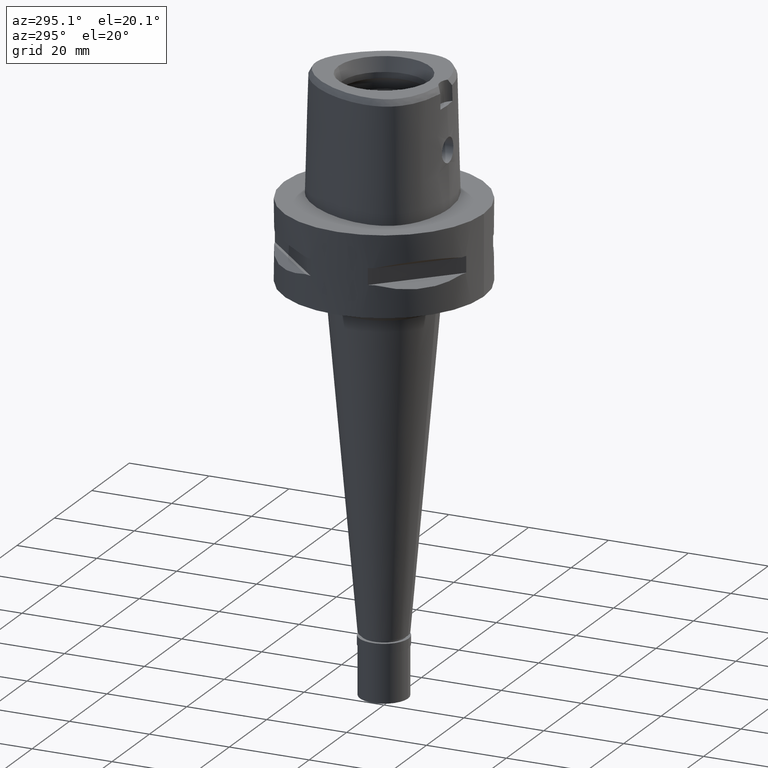
[diagram: clean part render]
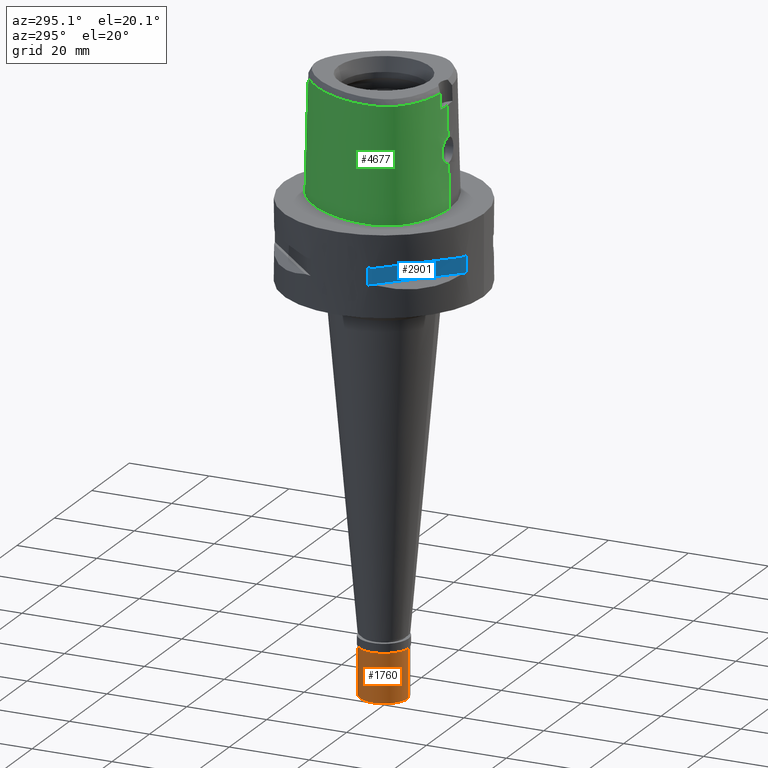
[diagram: same view with three faces highlighted in distinct colors, each labeled with its STEP entity id]
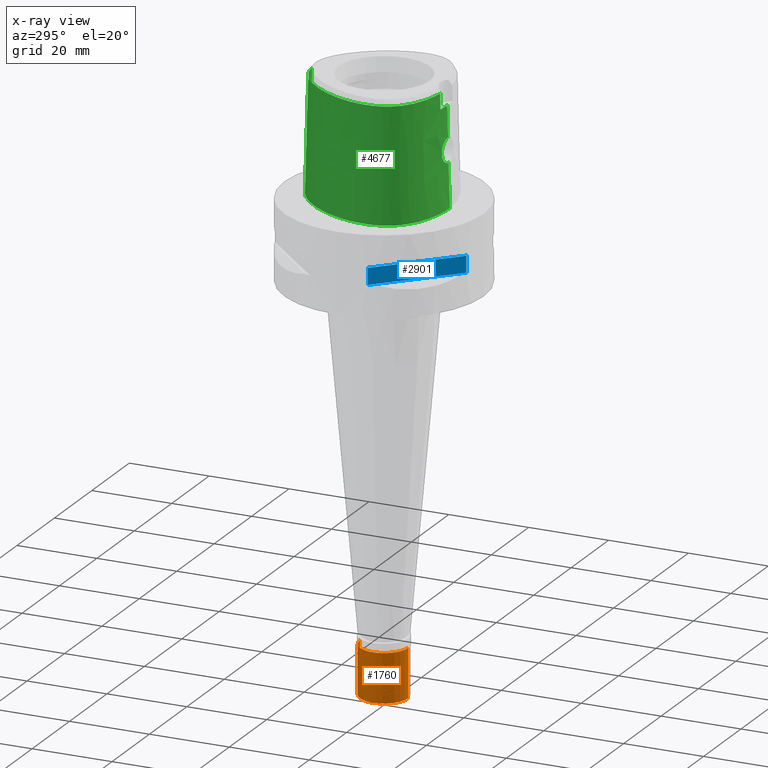
[diagram: x-ray of the same camera — body ghosted, the three highlighted faces saturated]
A machine part, auxiliary view with three faces highlighted in distinct colors.
The next image is the same camera in x-ray (body ghosted, the three faces saturated) — at least one of them is partly hidden behind the body in this view.
Their STEP definitions:

[orange] entity #1760 — the highlighted cylindrical surface (edge-blend (fillet) strip) has radius 6 mm, axis along (0, 0, 1).
#2 = CARTESIAN_POINT ( 'NONE',  ( 0.0000000000000000000, 0.0000000000000000000, -15.22500000000000142 ) ) ;
#78 = DIRECTION ( 'NONE',  ( 0.0000000000000000000, 1.000000000000000000, 0.0000000000000000000 ) ) ;
#173 = DIRECTION ( 'NONE',  ( 0.0000000000000000000, 0.0000000000000000000, -1.000000000000000000 ) ) ;
#236 = DIRECTION ( 'NONE',  ( 0.0000000000000000000, 0.0000000000000000000, 1.000000000000000000 ) ) ;
#288 = CARTESIAN_POINT ( 'NONE',  ( 0.0000000000000000000, -6.000000000000000000, -2.299999999999999822 ) ) ;
#319 = EDGE_CURVE ( 'NONE', #3281, #2619, #546, .T. ) ;
#451 = FACE_OUTER_BOUND ( 'NONE', #2199, .T. ) ;
#457 = VERTEX_POINT ( 'NONE', #288 ) ;
#536 = EDGE_CURVE ( 'NONE', #457, #3281, #1731, .T. ) ;
#546 = LINE ( 'NONE', #2021, #4209 ) ;
#635 = CARTESIAN_POINT ( 'NONE',  ( 0.0000000000000000000, -6.000000000000000000, -14.50000000000000000 ) ) ;
#962 = CIRCLE ( 'NONE', #2345, 6.000000000000000000 ) ;
#979 = EDGE_CURVE ( 'NONE', #2619, #4116, #962, .T. ) ;
#1013 = DIRECTION ( 'NONE',  ( 0.0000000000000000000, 1.000000000000000000, 0.0000000000000000000 ) ) ;
#1337 = CARTESIAN_POINT ( 'NONE',  ( 0.0000000000000000000, 0.0000000000000000000, -2.299999999999999822 ) ) ;
#1731 = CIRCLE ( 'NONE', #3501, 6.000000000000000000 ) ;
#1760 = ADVANCED_FACE ( 'NONE', ( #451 ), #1926, .T. ) ;
#1926 = CYLINDRICAL_SURFACE ( 'NONE', #3572, 6.000000000000000000 ) ;
#2021 = CARTESIAN_POINT ( 'NONE',  ( 0.0000000000000000000, 6.000000000000000000, -2.299999999999999822 ) ) ;
#2133 = LINE ( 'NONE', #3244, #2890 ) ;
#2154 = CARTESIAN_POINT ( 'NONE',  ( 0.0000000000000000000, 6.000000000000000000, -14.50000000000000000 ) ) ;
#2199 = EDGE_LOOP ( 'NONE', ( #4088, #2787, #4760, #4072 ) ) ;
#2345 = AXIS2_PLACEMENT_3D ( 'NONE', #4666, #236, #1013 ) ;
#2474 = DIRECTION ( 'NONE',  ( 0.0000000000000000000, 0.0000000000000000000, -1.000000000000000000 ) ) ;
#2588 = EDGE_CURVE ( 'NONE', #457, #4116, #2133, .T. ) ;
#2619 = VERTEX_POINT ( 'NONE', #2154 ) ;
#2787 = ORIENTED_EDGE ( 'NONE', *, *, #2588, .F. ) ;
#2820 = DIRECTION ( 'NONE',  ( 0.0000000000000000000, 0.0000000000000000000, -1.000000000000000000 ) ) ;
#2890 = VECTOR ( 'NONE', #2474, 1000.000000000000000 ) ;
#3244 = CARTESIAN_POINT ( 'NONE',  ( 0.0000000000000000000, -6.000000000000000000, -2.299999999999999822 ) ) ;
#3281 = VERTEX_POINT ( 'NONE', #3505 ) ;
#3398 = DIRECTION ( 'NONE',  ( 0.0000000000000000000, 0.0000000000000000000, 1.000000000000000000 ) ) ;
#3501 = AXIS2_PLACEMENT_3D ( 'NONE', #1337, #2820, #4285 ) ;
#3505 = CARTESIAN_POINT ( 'NONE',  ( 0.0000000000000000000, 6.000000000000000000, -2.299999999999999822 ) ) ;
#3572 = AXIS2_PLACEMENT_3D ( 'NONE', #2, #3398, #78 ) ;
#4072 = ORIENTED_EDGE ( 'NONE', *, *, #319, .T. ) ;
#4088 = ORIENTED_EDGE ( 'NONE', *, *, #979, .T. ) ;
#4116 = VERTEX_POINT ( 'NONE', #635 ) ;
#4209 = VECTOR ( 'NONE', #173, 1000.000000000000000 ) ;
#4285 = DIRECTION ( 'NONE',  ( 0.0000000000000000000, -1.000000000000000000, 0.0000000000000000000 ) ) ;
#4666 = CARTESIAN_POINT ( 'NONE',  ( 0.0000000000000000000, 0.0000000000000000000, -14.50000000000000000 ) ) ;
#4760 = ORIENTED_EDGE ( 'NONE', *, *, #536, .T. ) ;

[blue] entity #2901 — the highlighted planar face has unit normal (0.7071, 0.7071, 0).
#116 = CARTESIAN_POINT ( 'NONE',  ( -7.159921374235000080, -23.95277699797999915, -12.05000000000000071 ) ) ;
#359 = ORIENTED_EDGE ( 'NONE', *, *, #4111, .T. ) ;
#544 = DIRECTION ( 'NONE',  ( 0.0000000000000000000, 0.0000000000000000000, 1.000000000000000000 ) ) ;
#828 = DIRECTION ( 'NONE',  ( 0.7071067811865475727, 0.7071067811865475727, 0.0000000000000000000 ) ) ;
#862 = CARTESIAN_POINT ( 'NONE',  ( -7.159921374230999724, -23.95277699797999915, -12.05000000000000071 ) ) ;
#890 = LINE ( 'NONE', #916, #1319 ) ;
#916 = CARTESIAN_POINT ( 'NONE',  ( -7.159921374230999724, -23.95277699797999915, -12.05000000000000071 ) ) ;
#1199 = VECTOR ( 'NONE', #3080, 1000.000000000000114 ) ;
#1260 = FACE_OUTER_BOUND ( 'NONE', #4601, .T. ) ;
#1319 = VECTOR ( 'NONE', #544, 1000.000000000000000 ) ;
#1362 = DIRECTION ( 'NONE',  ( 0.0000000000000000000, 0.0000000000000000000, -1.000000000000000000 ) ) ;
#1486 = EDGE_CURVE ( 'NONE', #2384, #4597, #3756, .T. ) ;
#1572 = PLANE ( 'NONE',  #4438 ) ;
#1808 = VECTOR ( 'NONE', #2311, 1000.000000000000114 ) ;
#2010 = CARTESIAN_POINT ( 'NONE',  ( -23.95277699797999915, -7.159921374230999724, -12.05000000000000071 ) ) ;
#2220 = EDGE_CURVE ( 'NONE', #4140, #3346, #4191, .T. ) ;
#2311 = DIRECTION ( 'NONE',  ( -0.7071067811865474617, 0.7071067811865474617, 0.0000000000000000000 ) ) ;
#2384 = VERTEX_POINT ( 'NONE', #116 ) ;
#2469 = CARTESIAN_POINT ( 'NONE',  ( -23.95277699797999915, -7.159921374235000080, -7.950000000000000178 ) ) ;
#2901 = ADVANCED_FACE ( 'NONE', ( #1260 ), #1572, .F. ) ;
#3080 = DIRECTION ( 'NONE',  ( -0.7071067811865474617, 0.7071067811865474617, 0.0000000000000000000 ) ) ;
#3214 = ORIENTED_EDGE ( 'NONE', *, *, #3829, .T. ) ;
#3346 = VERTEX_POINT ( 'NONE', #2469 ) ;
#3717 = ORIENTED_EDGE ( 'NONE', *, *, #2220, .T. ) ;
#3744 = CARTESIAN_POINT ( 'NONE',  ( -4.949747468305999654, -26.16295090389999700, -7.950000000000000178 ) ) ;
#3756 = LINE ( 'NONE', #862, #1808 ) ;
#3829 = EDGE_CURVE ( 'NONE', #2384, #4140, #890, .T. ) ;
#3902 = CARTESIAN_POINT ( 'NONE',  ( -23.95277699797999915, -7.159921374230999724, -7.950000000000000178 ) ) ;
#3929 = ORIENTED_EDGE ( 'NONE', *, *, #1486, .F. ) ;
#3944 = CARTESIAN_POINT ( 'NONE',  ( -7.159921374230999724, -23.95277699797999915, -7.950000000000000178 ) ) ;
#4111 = EDGE_CURVE ( 'NONE', #3346, #4597, #4706, .T. ) ;
#4140 = VERTEX_POINT ( 'NONE', #3944 ) ;
#4144 = CARTESIAN_POINT ( 'NONE',  ( -7.159921374230999724, -23.95277699797999915, -7.950000000000000178 ) ) ;
#4184 = DIRECTION ( 'NONE',  ( 0.0000000000000000000, 0.0000000000000000000, -1.000000000000000000 ) ) ;
#4191 = LINE ( 'NONE', #4144, #1199 ) ;
#4438 = AXIS2_PLACEMENT_3D ( 'NONE', #3744, #828, #4184 ) ;
#4486 = VECTOR ( 'NONE', #1362, 1000.000000000000000 ) ;
#4597 = VERTEX_POINT ( 'NONE', #2010 ) ;
#4601 = EDGE_LOOP ( 'NONE', ( #3717, #359, #3929, #3214 ) ) ;
#4706 = LINE ( 'NONE', #3902, #4486 ) ;

[green] entity #4677 — the highlighted face is a freeform B-spline surface patch.
#7 = CARTESIAN_POINT ( 'NONE',  ( -1.286803369739000003, -15.75925599288999912, 29.09114265603000149 ) ) ;
#104 = B_SPLINE_CURVE_WITH_KNOTS ( 'NONE', 3,
 ( #2876, #4342, #3874, #565, #2038, #4363, #1792, #4751, #2248, #1527, #1467, #383, #2949, #2537, #774, #4089, #2517, #4385, #1889, #3986, #2998, #726 ),
 .UNSPECIFIED., .F., .F.,
 ( 4, 1, 1, 1, 1, 1, 1, 1, 1, 1, 1, 1, 1, 1, 1, 1, 1, 1, 1, 4 ),
 ( 0.0000000000000000000, 0.03108635432772781371, 0.1191694130251493983, 0.1632109423738073717, 0.2072524717224653590, 0.2512940010712290673, 0.2733147657454522705, 0.2953355304197813336, 0.3173562950942159788, 0.3393770597685449308, 0.3834185891172029459, 0.4274601184658609054, 0.4715016478145189205, 0.5595847065118348951, 0.6476677652092563964, 0.7357508239065724265, 0.8238338826038883456, 0.9119169413012888636, 0.9559584706499574258, 1.000000000000000000 ),
 .UNSPECIFIED. ) ;
#107 = CARTESIAN_POINT ( 'NONE',  ( -0.7720014812822459938, -16.02065578786021049, 16.95248174244887451 ) ) ;
#151 = CARTESIAN_POINT ( 'NONE',  ( -3.013126799046082382, -15.92996376294000527, 14.48323853869100830 ) ) ;
#182 = CARTESIAN_POINT ( 'NONE',  ( -2.147355030647550400, -15.96825947258658651, 16.16600393518704237 ) ) ;
#193 = CARTESIAN_POINT ( 'NONE',  ( -7.668807776176000068, 15.44980322510000015, 19.20395691673000016 ) ) ;
#206 = CARTESIAN_POINT ( 'NONE',  ( -3.044418663748116760, -15.93381395086438523, 14.19068348226107190 ) ) ;
#213 = CARTESIAN_POINT ( 'NONE',  ( -16.22974823158999769, -8.250337700119001028, 19.20395691673000016 ) ) ;
#225 = CARTESIAN_POINT ( 'NONE',  ( -2.786056089307299644, -15.99708241084507243, 12.75597422201901132 ) ) ;
#226 = EDGE_LOOP ( 'NONE', ( #1846, #920, #2773, #2748, #1105, #4161, #909, #1694 ) ) ;
#235 = CARTESIAN_POINT ( 'NONE',  ( -16.00394177247000016, -9.239880090088000486, 9.316771177421999894 ) ) ;
#248 = CARTESIAN_POINT ( 'NONE',  ( -2.853040030633340329, -15.98611500932615392, 12.92115897029733240 ) ) ;
#262 = CARTESIAN_POINT ( 'NONE',  ( -16.77753631368000242, -0.3562822732601000353, 29.09114265603000149 ) ) ;
#265 = B_SPLINE_CURVE_WITH_KNOTS ( 'NONE', 3,
 ( #1150, #4735, #4368, #4476 ),
 .UNSPECIFIED., .F., .F.,
 ( 4, 4 ),
 ( 0.0000000000000000000, 1.000000000000000000 ),
 .UNSPECIFIED. ) ;
#282 = CARTESIAN_POINT ( 'NONE',  ( -17.47781023749000440, -3.270737581501999891, 9.316771177421999894 ) ) ;
#302 = CARTESIAN_POINT ( 'NONE',  ( 0.7201291720090999826, -16.21519153347999875, 9.316771177421999894 ) ) ;
#330 = CARTESIAN_POINT ( 'NONE',  ( -8.782085175431999957, -14.58525477847999952, 19.20395691673000016 ) ) ;
#356 = CARTESIAN_POINT ( 'NONE',  ( -11.44887817687999920, -13.28533860557999979, 19.20395691673000016 ) ) ;
#373 = CARTESIAN_POINT ( 'NONE',  ( -1.810832860424000326E-12, -16.18126839358999902, 10.94999999999999929 ) ) ;
#382 = CARTESIAN_POINT ( 'NONE',  ( -13.20908641616999901, -12.10346131716000073, 19.20395691673000016 ) ) ;
#383 = CARTESIAN_POINT ( 'NONE',  ( -16.85489160761476413, -5.354527567564947965, 28.52071192347010253 ) ) ;
#390 = CARTESIAN_POINT ( 'NONE',  ( -5.051093167672319417, -16.15562500055322559, -2.252703169944476891E-08 ) ) ;
#408 = CARTESIAN_POINT ( 'NONE',  ( -8.697311593261998652, -14.35163131046000018, 29.09114265603000149 ) ) ;
#461 = CARTESIAN_POINT ( 'NONE',  ( -3.205766279363000342E-11, 17.98202997909999823, 28.52071728569000086 ) ) ;
#529 = CARTESIAN_POINT ( 'NONE',  ( -2.552830599941020129, -16.03018522981423644, 12.33094197178747820 ) ) ;
#554 = CARTESIAN_POINT ( 'NONE',  ( -2.277856723153190988, -16.06297130029204467, 11.97065386825686062 ) ) ;
#562 = FACE_OUTER_BOUND ( 'NONE', #226, .T. ) ;
#565 = CARTESIAN_POINT ( 'NONE',  ( -8.702202515497507562, -14.36510996955669306, 28.52071192347010253 ) ) ;
#580 = CARTESIAN_POINT ( 'NONE',  ( -2.810698063864945695, -15.93356325055952993, 15.18427397488553154 ) ) ;
#589 = CARTESIAN_POINT ( 'NONE',  ( 0.5305684365723000173, 17.95174221451999941, 29.09114265603000149 ) ) ;
#599 = VERTEX_POINT ( 'NONE', #782 ) ;
#602 = CARTESIAN_POINT ( 'NONE',  ( -2.320101171613079050, -15.95886575339149793, 15.99312300827506306 ) ) ;
#609 = CARTESIAN_POINT ( 'NONE',  ( 0.3639062212631999915, 18.20947651183999838, 19.20395691673000016 ) ) ;
#619 = CARTESIAN_POINT ( 'NONE',  ( -2.590697767162837728, -16.02520795278674015, 12.38998842269977452 ) ) ;
#628 = CARTESIAN_POINT ( 'NONE',  ( 0.3738602578722000080, 18.45648981680000134, 9.316771177421999894 ) ) ;
#655 = CARTESIAN_POINT ( 'NONE',  ( -0.4636176512890000101, 18.23430334354999971, 19.20395691673000016 ) ) ;
#675 = CARTESIAN_POINT ( 'NONE',  ( -13.05575616894999946, -11.90823727066000082, 29.09114265603000149 ) ) ;
#723 = CARTESIAN_POINT ( 'NONE',  ( 1.070056064380999983, -15.95437377600999973, 19.20395691673000016 ) ) ;
#726 = CARTESIAN_POINT ( 'NONE',  ( -3.205766279363000342E-11, 17.98202997909999823, 28.52071728569000086 ) ) ;
#772 = CARTESIAN_POINT ( 'NONE',  ( -11.32630903406000122, -13.06981832083000050, 29.09114265603000149 ) ) ;
#774 = CARTESIAN_POINT ( 'NONE',  ( -15.84228689412657154, 3.460033471612096623, 28.52071192347010253 ) ) ;
#782 = CARTESIAN_POINT ( 'NONE',  ( 6.327245226782000075E-11, 18.69499999997999851, 1.283047742124999982E-13 ) ) ;
#784 = CARTESIAN_POINT ( 'NONE',  ( -17.56373942988775738, -5.455996093829836191, -2.252703169944476891E-08 ) ) ;
#799 = CARTESIAN_POINT ( 'NONE',  ( 0.0000000000000000000, -16.02877864023999877, 17.05000000000000071 ) ) ;
#800 = EDGE_CURVE ( 'NONE', #4413, #599, #1267, .T. ) ;
#900 = CARTESIAN_POINT ( 'NONE',  ( -2.816419461188467643, -15.93332529475345538, 15.17060812274152326 ) ) ;
#909 = ORIENTED_EDGE ( 'NONE', *, *, #800, .T. ) ;
#920 = ORIENTED_EDGE ( 'NONE', *, *, #3599, .F. ) ;
#923 = CARTESIAN_POINT ( 'NONE',  ( -2.747501840656933592, -16.00308382197237833, 12.67196048838030720 ) ) ;
#929 = CARTESIAN_POINT ( 'NONE',  ( -17.72574105672000044, -3.269125760315999774, -0.5704145618830001041 ) ) ;
#945 = CARTESIAN_POINT ( 'NONE',  ( -2.789491760468246984, -15.93446940309513948, 15.23371651255630255 ) ) ;
#953 = CARTESIAN_POINT ( 'NONE',  ( -2.043508292362000045, 18.56419796652999921, -0.5704145618830001041 ) ) ;
#966 = CARTESIAN_POINT ( 'NONE',  ( -2.828624732066519432, -15.99016283375805791, 12.85919905929462281 ) ) ;
#974 = CARTESIAN_POINT ( 'NONE',  ( -11.28662497744000071, 12.30111484386000065, 9.316771177421999894 ) ) ;
#985 = CARTESIAN_POINT ( 'NONE',  ( -2.218314701416530532, -16.06939595449638603, 11.90651632053097231 ) ) ;
#994 = CARTESIAN_POINT ( 'NONE',  ( -7.822764787845000178, 15.64591010425999862, 9.316771177421999894 ) ) ;
#1012 = CARTESIAN_POINT ( 'NONE',  ( -1.890839688232999860, 17.83402870695000075, 29.09114265603000149 ) ) ;
#1060 = CARTESIAN_POINT ( 'NONE',  ( -14.43869635787000050, -10.95090983168999976, 19.20395691673000016 ) ) ;
#1095 = CARTESIAN_POINT ( 'NONE',  ( -0.6801907859079586727, 18.69500000056697431, -2.252703169944476891E-08 ) ) ;
#1101 = CARTESIAN_POINT ( 'NONE',  ( -3.235121557393999758, -15.64755690635000107, 24.69999999999999929 ) ) ;
#1105 = ORIENTED_EDGE ( 'NONE', *, *, #1373, .F. ) ;
#1114 = CARTESIAN_POINT ( 'NONE',  ( -8.951632339771999014, -15.05250171449999819, -0.5704145618830001041 ) ) ;
#1124 = CARTESIAN_POINT ( 'NONE',  ( -16.51672824833155317, 3.703437500192405363, -2.252703169944476891E-08 ) ) ;
#1150 = CARTESIAN_POINT ( 'NONE',  ( 2.029620734289000178E-07, -15.83752876601000281, 24.70000006102999990 ) ) ;
#1168 = CARTESIAN_POINT ( 'NONE',  ( -3.168920966622999824, -15.55911077538999976, 28.52071192346999950 ) ) ;
#1172 = CARTESIAN_POINT ( 'NONE',  ( -1.463759547442000055E-11, -16.45500000000000185, 1.294890121053999835E-13 ) ) ;
#1187 = CARTESIAN_POINT ( 'NONE',  ( -1.464320396692932791, -15.99977420083282809, 16.67595945647630984 ) ) ;
#1211 = EDGE_CURVE ( 'NONE', #4376, #4413, #104, .T. ) ;
#1254 = CARTESIAN_POINT ( 'NONE',  ( -1.509407366450125743, -15.99800713718341250, 16.65085354121410788 ) ) ;
#1267 = LINE ( 'NONE', #461, #4654 ) ;
#1280 = CARTESIAN_POINT ( 'NONE',  ( -2.094916424276753730, -15.97106008019307311, 16.21696163368423882 ) ) ;
#1300 = CARTESIAN_POINT ( 'NONE',  ( -3.048937761837732463, -15.93572848415399434, 14.09393463165942784 ) ) ;
#1306 = CARTESIAN_POINT ( 'NONE',  ( -14.17736244161000059, 8.185312198972001241, 9.316771177421999894 ) ) ;
#1320 = CARTESIAN_POINT ( 'NONE',  ( -2.804454483941787757, -15.93382557862443605, 15.19905634155089480 ) ) ;
#1325 = VERTEX_POINT ( 'NONE', #1101 ) ;
#1328 = CARTESIAN_POINT ( 'NONE',  ( -16.98194859902999809, -3.273961223873000037, 29.09114265603000149 ) ) ;
#1347 = CARTESIAN_POINT ( 'NONE',  ( -2.421957811214131784, -16.04659154245949892, 12.14349191243337245 ) ) ;
#1358 = CARTESIAN_POINT ( 'NONE',  ( -17.17866842603000066, -7.169980043637999678, -0.5704145618830001041 ) ) ;
#1369 = CARTESIAN_POINT ( 'NONE',  ( -1.488933503802337688, -16.13222056830094431, 11.33651907177712381 ) ) ;
#1373 = EDGE_CURVE ( 'NONE', #4376, #1325, #3397, .T. ) ;
#1377 = CARTESIAN_POINT ( 'NONE',  ( -13.74710222631000001, 7.936918702914001145, 29.09114265603000149 ) ) ;
#1467 = CARTESIAN_POINT ( 'NONE',  ( -16.47905549557153293, -6.962316292880090352, 28.52071192347010253 ) ) ;
#1476 = CARTESIAN_POINT ( 'NONE',  ( -16.20602472013149509, -9.356552734657469728, -2.252703169944476891E-08 ) ) ;
#1508 = CARTESIAN_POINT ( 'NONE',  ( -8.946741556378418281, -15.03902343803171426, -2.252703169944476891E-08 ) ) ;
#1526 = VERTEX_POINT ( 'NONE', #4170 ) ;
#1527 = CARTESIAN_POINT ( 'NONE',  ( -16.01658395503630317, -8.155509241189536240, 28.52071192347010253 ) ) ;
#1594 = CARTESIAN_POINT ( 'NONE',  ( -1.080785386626960998, -16.01283512492906880, 16.85230164110377160 ) ) ;
#1601 = LINE ( 'NONE', #4569, #1713 ) ;
#1615 = CARTESIAN_POINT ( 'NONE',  ( -1.142365932955063945, -16.01097817076709973, 16.82799295845219589 ) ) ;
#1641 = CARTESIAN_POINT ( 'NONE',  ( -2.121906388038344193, -15.96962511433430620, 16.19092891590691607 ) ) ;
#1667 = CARTESIAN_POINT ( 'NONE',  ( -3.049867162053068181, -15.94265433689995959, 13.81421045561196692 ) ) ;
#1674 = CARTESIAN_POINT ( 'NONE',  ( -17.22987941826000124, -3.272349402686999920, 19.20395691673000016 ) ) ;
#1687 = CARTESIAN_POINT ( 'NONE',  ( -2.453423636120622309, -15.95157160916551753, 15.82295554168210927 ) ) ;
#1694 = ORIENTED_EDGE ( 'NONE', *, *, #2113, .T. ) ;
#1695 = CARTESIAN_POINT ( 'NONE',  ( -15.66039569087999972, -10.22138777230999906, -0.5704145618830001041 ) ) ;
#1710 = CARTESIAN_POINT ( 'NONE',  ( -2.953265560762537767, -15.96792594531354048, 13.23097564340255516 ) ) ;
#1713 = VECTOR ( 'NONE', #4498, 1000.000000000000114 ) ;
#1721 = CARTESIAN_POINT ( 'NONE',  ( -14.39249254925999999, 8.309508947000999513, -0.5704145618830001041 ) ) ;
#1737 = CARTESIAN_POINT ( 'NONE',  ( -1.824343543868192752, -16.10762580111511610, 11.54759697073975921 ) ) ;
#1747 = CARTESIAN_POINT ( 'NONE',  ( -17.33218234294999860, -5.422849689736000123, 9.316771177421999894 ) ) ;
#1767 = CARTESIAN_POINT ( 'NONE',  ( -0.4764648037404999870, 18.48199787399000016, 9.316771177421999894 ) ) ;
#1792 = CARTESIAN_POINT ( 'NONE',  ( -14.26907056455886469, -10.79012254419018824, 28.52071192347010253 ) ) ;
#1813 = CARTESIAN_POINT ( 'NONE',  ( -1.298308562127999943, -16.00668760952000014, 19.20395691673000016 ) ) ;
#1820 = CARTESIAN_POINT ( 'NONE',  ( -2.040572357783139612, 18.55015625055378337, -2.252703169944476891E-08 ) ) ;
#1836 = CARTESIAN_POINT ( 'NONE',  ( 1.060560765501000091, -15.70738105613000002, 29.09114265603000149 ) ) ;
#1846 = ORIENTED_EDGE ( 'NONE', *, *, #4462, .F. ) ;
#1860 = CARTESIAN_POINT ( 'NONE',  ( -14.79871907468000103, -11.29217323829000108, -0.5704145618830001041 ) ) ;
#1885 = CARTESIAN_POINT ( 'NONE',  ( -1.578112619469910438, -15.99520405282528124, 16.61012822175178982 ) ) ;
#1887 = B_SPLINE_CURVE_WITH_KNOTS ( 'NONE', 3,
 ( #2604, #1095, #1820, #3317, #2232, #3621, #2652, #1124, #3647, #4781, #784, #3696, #2909, #1476, #3723, #2957, #4070, #3368, #1508, #390, #4758, #1172 ),
 .UNSPECIFIED., .F., .F.,
 ( 4, 1, 1, 1, 1, 1, 1, 1, 1, 1, 1, 1, 1, 1, 1, 1, 1, 1, 1, 4 ),
 ( 0.0000000000000000000, 0.04166666666790999618, 0.08333333333452000447, 0.1666666666678000008, 0.2500000000009999779, 0.3333333333342000104, 0.4166666666675000186, 0.5000000000006999956, 0.5416666666673000119, 0.5833333333339000282, 0.6250000000005000445, 0.6458333333337999971, 0.6666666666671999808, 0.6875000000005000445, 0.7083333333336999660, 0.7500000000004000134, 0.7916666666670000296, 0.8333333333336000459, 0.9166666666668999985, 1.000000000000000000 ),
 .UNSPECIFIED. ) ;
#1888 = CARTESIAN_POINT ( 'NONE',  ( -4.922186807459999258, -15.43572524480000041, 29.09114265603000149 ) ) ;
#1889 = CARTESIAN_POINT ( 'NONE',  ( -4.422474562381330188, 17.08283562089888719, 28.52071192347010253 ) ) ;
#1920 = CARTESIAN_POINT ( 'NONE',  ( -3.191384227370533289, -15.58827410119925538, 27.24714128231333277 ) ) ;
#1973 = CARTESIAN_POINT ( 'NONE',  ( -3.213444910991638981, -15.61774751512825432, 25.97357064115666603 ) ) ;
#1979 = CARTESIAN_POINT ( 'NONE',  ( -1.123904096776431993, -16.01154477598331383, 16.83542716958019625 ) ) ;
#1995 = CARTESIAN_POINT ( 'NONE',  ( -3.235121557393999758, -15.64755690635000107, 24.69999999999999929 ) ) ;
#2002 = CARTESIAN_POINT ( 'NONE',  ( -1.185329121489339332, -16.15025848422254739, 11.18974674051603202 ) ) ;
#2027 = CARTESIAN_POINT ( 'NONE',  ( -2.167386793534531453, -16.07478366651558233, 11.85404068908601438 ) ) ;
#2035 = CARTESIAN_POINT ( 'NONE',  ( 0.5756361489237999951, 18.69183959671999773, -0.5704145618830001041 ) ) ;
#2038 = CARTESIAN_POINT ( 'NONE',  ( -11.33338053122528954, -13.08225253589918857, 28.52071192347010253 ) ) ;
#2051 = CARTESIAN_POINT ( 'NONE',  ( -2.616123542127200441, -15.94295089770418272, 15.57110987000720037 ) ) ;
#2061 = CARTESIAN_POINT ( 'NONE',  ( -17.02224586980999987, -0.3128848666619000185, 19.20395691673000016 ) ) ;
#2072 = CARTESIAN_POINT ( 'NONE',  ( -2.139792336566330277, -15.96866706309891804, 16.17346382314658371 ) ) ;
#2081 = CARTESIAN_POINT ( 'NONE',  ( -16.46533719845999855, -6.958244336934000351, 29.09114265603000149 ) ) ;
#2087 = EDGE_CURVE ( 'NONE', #3917, #1325, #265, .T. ) ;
#2096 = CARTESIAN_POINT ( 'NONE',  ( -1.777701851811500866, -15.98656394239672807, 16.48037801796332857 ) ) ;
#2106 = CARTESIAN_POINT ( 'NONE',  ( -7.976721799514001177, 15.84201698341000331, -0.5704145618830001041 ) ) ;
#2113 = EDGE_CURVE ( 'NONE', #599, #1526, #1887, .T. ) ;
#2131 = CARTESIAN_POINT ( 'NONE',  ( 0.5455910073561999196, 18.19844134191999885, 19.20395691673000016 ) ) ;
#2174 = CARTESIAN_POINT ( 'NONE',  ( -11.69401646253999871, -13.71637917508999926, -0.5704145618830001041 ) ) ;
#2232 = CARTESIAN_POINT ( 'NONE',  ( -7.967839664576181313, 15.83070312544430536, -2.252703169944476891E-08 ) ) ;
#2245 = CARTESIAN_POINT ( 'NONE',  ( -1.671079082928542903, -15.99125693479893506, 16.55150716580386572 ) ) ;
#2247 = CARTESIAN_POINT ( 'NONE',  ( -8.866858757601999486, -14.81887824648999974, 9.316771177421999894 ) ) ;
#2248 = CARTESIAN_POINT ( 'NONE',  ( -15.58740380353288835, -8.999391780896800697, 28.52071192347010253 ) ) ;
#2272 = CARTESIAN_POINT ( 'NONE',  ( -1.161965265075060927, -16.01036946643593595, 16.81999397618113434 ) ) ;
#2375 = CARTESIAN_POINT ( 'NONE',  ( -3.027142674771544861, -15.93086847652590343, 14.38532676948184630 ) ) ;
#2398 = CARTESIAN_POINT ( 'NONE',  ( -2.326841561567788652, -16.05749694188119747, 12.02748667254537196 ) ) ;
#2405 = CARTESIAN_POINT ( 'NONE',  ( -4.628819286208000428, 17.52182800499000237, 9.316771177421999894 ) ) ;
#2423 = CARTESIAN_POINT ( 'NONE',  ( -2.481561665714534293, -16.03937903271171095, 12.22394999570023799 ) ) ;
#2433 = CARTESIAN_POINT ( 'NONE',  ( -4.735056263179999725, 17.74784407622000160, -0.5704145618830001041 ) ) ;
#2439 = CARTESIAN_POINT ( 'NONE',  ( -1.810832860424000326E-12, -16.18126839358999902, 10.94999999999999929 ) ) ;
#2445 = CARTESIAN_POINT ( 'NONE',  ( -2.820530240242548281, -15.99148530278361413, 12.83933755004274602 ) ) ;
#2452 = CARTESIAN_POINT ( 'NONE',  ( -13.96223233395999941, 8.061115450942999416, 19.20395691673000016 ) ) ;
#2464 = CARTESIAN_POINT ( 'NONE',  ( -2.192295571448891423, -16.07215749973931551, 11.87950562194050086 ) ) ;
#2472 = CARTESIAN_POINT ( 'NONE',  ( 0.3838142944813000557, 18.70350312175999719, -0.5704145618830001041 ) ) ;
#2480 = VERTEX_POINT ( 'NONE', #3511 ) ;
#2490 = CARTESIAN_POINT ( 'NONE',  ( -16.00353268833000087, -8.149703242506999956, 29.09114265603000149 ) ) ;
#2516 = CARTESIAN_POINT ( 'NONE',  ( -15.05961637843000034, -9.784614237311000551, 29.09114265603000149 ) ) ;
#2517 = CARTESIAN_POINT ( 'NONE',  ( -10.91764528035087167, 11.98972044748424892, 28.52071192347010253 ) ) ;
#2537 = CARTESIAN_POINT ( 'NONE',  ( -16.79165457291457031, -0.3537785057483182616, 28.52071192347010253 ) ) ;
#2596 = CARTESIAN_POINT ( 'NONE',  ( -1.321318946906999914, -16.50155084277000128, -0.5704145618830001041 ) ) ;
#2604 = CARTESIAN_POINT ( 'NONE',  ( 6.327245226782000075E-11, 18.69499999997999851, 1.283047742124999982E-13 ) ) ;
#2639 = CARTESIAN_POINT ( 'NONE',  ( -1.246987744246074836, -16.00769458577592275, 16.78478421390995123 ) ) ;
#2652 = CARTESIAN_POINT ( 'NONE',  ( -14.38008119738573143, 8.302343750282300761, -2.252703169944476891E-08 ) ) ;
#2734 = CARTESIAN_POINT ( 'NONE',  ( -1.612733280564597083, -15.99376438842520898, 16.58899897074369179 ) ) ;
#2748 = ORIENTED_EDGE ( 'NONE', *, *, #2087, .T. ) ;
#2762 = CARTESIAN_POINT ( 'NONE',  ( -2.898041657600201049, -15.92998438367715686, 14.97304673152782328 ) ) ;
#2767 = CARTESIAN_POINT ( 'NONE',  ( -15.25987614924999924, -9.930205415642999967, 19.20395691673000016 ) ) ;
#2773 = ORIENTED_EDGE ( 'NONE', *, *, #3913, .F. ) ;
#2781 = CARTESIAN_POINT ( 'NONE',  ( -1.200123310920471642, -16.14947479375452488, 11.19600187488180865 ) ) ;
#2786 = CARTESIAN_POINT ( 'NONE',  ( -16.94089135016999847, -7.099401474736999340, 9.316771177421999894 ) ) ;
#2803 = CARTESIAN_POINT ( 'NONE',  ( -3.033119689115681972, -15.94945339248383576, 13.62281061693546214 ) ) ;
#2811 = CARTESIAN_POINT ( 'NONE',  ( -17.57791639379999893, -5.458025465423999911, -0.5704145618830001041 ) ) ;
#2826 = CARTESIAN_POINT ( 'NONE',  ( -2.664180901029102433, -15.94046407803000776, 15.48767593797173880 ) ) ;
#2835 = CARTESIAN_POINT ( 'NONE',  ( -11.09665507243999905, 12.14079284141999970, 19.20395691673000016 ) ) ;
#2845 = CARTESIAN_POINT ( 'NONE',  ( -2.030826829733517247, -15.97439355690339191, 16.27653642132159817 ) ) ;
#2853 = CARTESIAN_POINT ( 'NONE',  ( 0.5606135781400000129, 18.44514046931999829, 9.316771177421999894 ) ) ;
#2876 = CARTESIAN_POINT ( 'NONE',  ( -3.168920966622999824, -15.55911077538999976, 28.52071192346999950 ) ) ;
#2909 = CARTESIAN_POINT ( 'NONE',  ( -16.66912842190886224, -8.445800781479288588, -2.252703169944476891E-08 ) ) ;
#2924 = CARTESIAN_POINT ( 'NONE',  ( -14.61870771627000032, -11.12154153498999953, 9.316771177421999894 ) ) ;
#2949 = CARTESIAN_POINT ( 'NONE',  ( -16.99625270563491952, -3.273868231553030306, 28.52071192347010253 ) ) ;
#2957 = CARTESIAN_POINT ( 'NONE',  ( -14.78833380441265177, -11.28232910194992478, -2.252703169944476891E-08 ) ) ;
#2995 = CARTESIAN_POINT ( 'NONE',  ( -1.684168024566602639, -15.99068518346834900, 16.54287913577947577 ) ) ;
#2998 = CARTESIAN_POINT ( 'NONE',  ( -0.6295828121023612223, 17.98203011042244626, 28.52071192347010253 ) ) ;
#3010 = CARTESIAN_POINT ( 'NONE',  ( -3.168920966622999824, -15.55911077538999976, 28.52071192346999950 ) ) ;
#3018 = CARTESIAN_POINT ( 'NONE',  ( -1.331752103689632261, -16.00477041401308398, 16.74570742830002246 ) ) ;
#3043 = CARTESIAN_POINT ( 'NONE',  ( -0.1862489418789776696, -16.02877864023999877, 17.05000000000000426 ) ) ;
#3083 = CARTESIAN_POINT ( 'NONE',  ( 6.795968092614841689E-08, -15.96503292052651268, 19.60000012629532051 ) ) ;
#3090 = CARTESIAN_POINT ( 'NONE',  ( -1.154669552917617636, -16.01059741206179154, 16.82299173243502111 ) ) ;
#3097 = B_SPLINE_CURVE_WITH_KNOTS ( 'NONE', 3,
 ( #799, #3043, #4518, #4491, #107, #4156, #3379, #1594, #1979, #1615, #3090, #2272, #2639, #3018, #1187, #1254, #1885, #2734, #4204, #2245, #2995, #2096, #3165, #4587, #2845, #1280, #1641, #2072, #182, #602, #1687, #2051, #2826, #4289, #3561, #945, #1320, #580, #4631, #900, #2762, #3521, #151, #2375, #4268, #206, #1300, #3186, #1667, #2803, #4246, #1710, #3145, #3538, #248, #3119, #966, #4228, #2445, #225, #923, #3474, #3909, #3931, #619, #3865, #529, #4652, #2423, #1347, #2398, #554, #985, #2464, #4610, #2027, #3884, #1737, #3841, #1369, #3213, #3498, #4675, #2781, #2002, #3280, #3682, #4375, #4023, #373 ),
 .UNSPECIFIED., .F., .F.,
 ( 4, 2, 2, 1, 1, 1, 2, 2, 2, 2, 1, 2, 2, 2, 1, 1, 2, 2, 2, 2, 1, 1, 1, 2, 2, 2, 2, 2, 2, 2, 2, 1, 1, 1, 2, 2, 2, 2, 1, 2, 2, 2, 1, 1, 2, 2, 2, 2, 1, 1, 1, 2, 2, 4 ),
 ( 0.0000000000000000000, 0.06249999999999795997, 0.09374999999999693301, 0.1093749999999964057, 0.1171874999999961281, 0.1210937499999958089, 0.1230468749999958644, 0.1249999999999959061, 0.1562499999999934497, 0.1718749999999924782, 0.1796874999999917288, 0.1835937499999913680, 0.1874999999999910349, 0.2187499999999910627, 0.2343749999999914790, 0.2421874999999920064, 0.2460937499999923117, 0.2499999999999925615, 0.3125000000000012212, 0.3437500000000055511, 0.3593750000000077161, 0.3671875000000087153, 0.3710937500000094924, 0.3730468750000096034, 0.3750000000000096589, 0.4375000000000083822, 0.4687500000000077161, 0.4843750000000074385, 0.5000000000000071054, 0.5625000000000069944, 0.5937500000000067724, 0.6093750000000067724, 0.6171875000000067724, 0.6210937500000066613, 0.6230468750000068834, 0.6250000000000069944, 0.6562500000000047740, 0.6718750000000035527, 0.6796875000000032196, 0.6835937500000031086, 0.6875000000000029976, 0.7187500000000025535, 0.7343750000000022204, 0.7421875000000021094, 0.7460937500000022204, 0.7500000000000022204, 0.8125000000000043299, 0.8437500000000052180, 0.8593750000000055511, 0.8671875000000058842, 0.8710937500000061062, 0.8730468750000059952, 0.8750000000000059952, 1.000000000000000000 ),
 .UNSPECIFIED. ) ;
#3119 = CARTESIAN_POINT ( 'NONE',  ( -2.836094793042795548, -15.98893515787706399, 12.87777998807073310 ) ) ;
#3145 = CARTESIAN_POINT ( 'NONE',  ( -2.909154060265081387, -15.97627486477607839, 13.08239897722390666 ) ) ;
#3152 = CARTESIAN_POINT ( 'NONE',  ( -16.84071424124000060, -5.352498138360000546, 29.09114265603000149 ) ) ;
#3165 = CARTESIAN_POINT ( 'NONE',  ( -1.858108550789408620, -15.98285558245452975, 16.42072955932850320 ) ) ;
#3171 = CARTESIAN_POINT ( 'NONE',  ( -16.29641061401999735, 3.623925472312000018, 9.316771177421999894 ) ) ;
#3186 = CARTESIAN_POINT ( 'NONE',  ( -3.050032223378684293, -15.93686354056563026, 14.04370529330103423 ) ) ;
#3197 = CARTESIAN_POINT ( 'NONE',  ( -1.941729222942000010, 18.07741846013999876, 19.20395691673000016 ) ) ;
#3213 = CARTESIAN_POINT ( 'NONE',  ( -1.365845051066447491, -16.13999275703745084, 11.27252759777201163 ) ) ;
#3222 = CARTESIAN_POINT ( 'NONE',  ( 0.3539521846540999994, 17.96246320687999898, 29.09114265603000149 ) ) ;
#3242 = CARTESIAN_POINT ( 'NONE',  ( -17.08644829208999738, -5.387673914047999446, 19.20395691673000016 ) ) ;
#3262 = CARTESIAN_POINT ( 'NONE',  ( 0.7264497204601000346, -16.46229665655999952, -0.5704145618830001041 ) ) ;
#3280 = CARTESIAN_POINT ( 'NONE',  ( -1.175482585297864535, -16.15077662653169099, 11.18561388570217296 ) ) ;
#3288 = CARTESIAN_POINT ( 'NONE',  ( 1.079551363262000185, -16.20136649588999944, 9.316771177421999894 ) ) ;
#3317 = CARTESIAN_POINT ( 'NONE',  ( -4.728927207058283955, 17.73480468801015064, -2.252703169944476891E-08 ) ) ;
#3335 = CARTESIAN_POINT ( 'NONE',  ( -14.25868499946999890, -10.78027812838999999, 29.09114265603000149 ) ) ;
#3368 = CARTESIAN_POINT ( 'NONE',  ( -11.68694516611753009, -13.70394531299874963, -2.252703169944476891E-08 ) ) ;
#3379 = CARTESIAN_POINT ( 'NONE',  ( -0.9944132480456928658, -16.01528890325212728, 16.88417381924448080 ) ) ;
#3397 = B_SPLINE_CURVE_WITH_KNOTS ( 'NONE', 3,
 ( #3010, #1920, #1973, #1995 ),
 .UNSPECIFIED., .F., .F.,
 ( 4, 4 ),
 ( 0.0000000000000000000, 1.000000000000000000 ),
 .UNSPECIFIED. ) ;
#3412 = DIRECTION ( 'NONE',  ( 3.341442692434894794E-12, 0.02499051285796925065, -0.9996876883642689116 ) ) ;
#3474 = CARTESIAN_POINT ( 'NONE',  ( -2.677998448665147357, -16.01318625573812682, 12.53941342736689357 ) ) ;
#3498 = CARTESIAN_POINT ( 'NONE',  ( -1.304826743967406166, -16.14367158726882323, 11.24258276217051744 ) ) ;
#3508 = CARTESIAN_POINT ( 'NONE',  ( -1.992618757652000028, 18.32080821333000031, 9.316771177421999894 ) ) ;
#3511 = CARTESIAN_POINT ( 'NONE',  ( 0.0000000000000000000, -16.02877864023999877, 17.05000000000000071 ) ) ;
#3521 = CARTESIAN_POINT ( 'NONE',  ( -2.956097870699018859, -15.92876435173784877, 14.77704295149774971 ) ) ;
#3528 = CARTESIAN_POINT ( 'NONE',  ( -17.51166498207999922, -0.2260900534655000127, -0.5704145618830001041 ) ) ;
#3538 = CARTESIAN_POINT ( 'NONE',  ( -2.885005240409862726, -15.98065242624326387, 13.00797960192107894 ) ) ;
#3545 = CARTESIAN_POINT ( 'NONE',  ( -16.45596377485999895, -8.350972157731000323, 9.316771177421999894 ) ) ;
#3561 = CARTESIAN_POINT ( 'NONE',  ( -2.757957807104278736, -15.93588395464708185, 15.30368141269210547 ) ) ;
#3571 = CARTESIAN_POINT ( 'NONE',  ( -0.4893119561919999083, 18.72969240443000416, -0.5704145618830001041 ) ) ;
#3596 = CARTESIAN_POINT ( 'NONE',  ( -17.26695542595000177, -0.2694874600637000572, 9.316771177421999894 ) ) ;
#3599 = EDGE_CURVE ( 'NONE', #2480, #4091, #3097, .T. ) ;
#3615 = CARTESIAN_POINT ( 'NONE',  ( -13.36241666338999856, -12.29868536365000153, 9.316771177421999894 ) ) ;
#3621 = CARTESIAN_POINT ( 'NONE',  ( -11.46563508066128989, 12.45218750037066258, -2.252703169944476891E-08 ) ) ;
#3624 = B_SPLINE_SURFACE_WITH_KNOTS ( 'NONE', 3, 3, ( 
 ( #2035, #2853, #2131, #589 ),
 ( #2472, #628, #609, #3222 ),
 ( #3571, #1767, #655, #4684 ),
 ( #953, #3508, #3197, #1012 ),
 ( #2433, #2405, #4297, #4278 ),
 ( #2106, #994, #193, #4665 ),
 ( #3897, #974, #2835, #4233 ),
 ( #1721, #1306, #2452, #1377 ),
 ( #3872, #3171, #4316, #4638 ),
 ( #3528, #3596, #2061, #262 ),
 ( #929, #282, #1674, #1328 ),
 ( #2811, #1747, #3242, #3152 ),
 ( #1358, #2786, #3920, #2081 ),
 ( #3939, #3545, #213, #2490 ),
 ( #3965, #235, #4252, #4617 ),
 ( #1695, #4702, #2767, #2516 ),
 ( #1860, #2924, #1060, #3335 ),
 ( #3713, #3615, #382, #675 ),
 ( #2174, #3640, #356, #772 ),
 ( #1114, #2247, #330, #408 ),
 ( #3689, #3985, #4339, #1888 ),
 ( #2596, #3664, #1813, #7 ),
 ( #3262, #302, #4773, #4726 ),
 ( #4384, #3288, #723, #1836 ) ),
 .UNSPECIFIED., .F., .F., .F.,
 ( 4, 1, 1, 1, 1, 1, 1, 1, 1, 1, 1, 1, 1, 1, 1, 1, 1, 1, 1, 1, 1, 4 ),
 ( 4, 4 ),
 ( -0.01173812893891999949, 0.0000000000000000000, 0.04166666666790999618, 0.08333333333452000447, 0.1666666666678000008, 0.2500000000009999779, 0.3333333333342000104, 0.4166666666675000186, 0.5000000000006999956, 0.5416666666673000119, 0.5833333333339000282, 0.6250000000005000445, 0.6458333333337999971, 0.6666666666671999808, 0.6875000000005000445, 0.7083333333336999660, 0.7500000000004000134, 0.7916666666670000296, 0.8333333333336000459, 0.9166666666668999985, 1.000000000000000000, 1.017968513185000035 ),
 ( 6.100076860305000065E-09, 0.9999996888961000252 ),
 .UNSPECIFIED. ) ;
#3640 = CARTESIAN_POINT ( 'NONE',  ( -11.57144731970999985, -13.50085889032999908, 9.316771177421999894 ) ) ;
#3647 = CARTESIAN_POINT ( 'NONE',  ( -17.49754712363003506, -0.2285937499011347351, -2.252703169944476891E-08 ) ) ;
#3664 = CARTESIAN_POINT ( 'NONE',  ( -1.309813754517999973, -16.25411922613999849, 9.316771177421999894 ) ) ;
#3682 = CARTESIAN_POINT ( 'NONE',  ( -1.171675727914678777, -16.15097599910998127, 11.18402443914475519 ) ) ;
#3689 = CARTESIAN_POINT ( 'NONE',  ( -5.053620743260999859, -16.16974068146999954, -0.5704145618830001041 ) ) ;
#3696 = CARTESIAN_POINT ( 'NONE',  ( -17.16495051834907315, -7.165908203285286326, -2.252703169944476891E-08 ) ) ;
#3713 = CARTESIAN_POINT ( 'NONE',  ( -13.51574691059999900, -12.49390941014000056, -0.5704145618830001041 ) ) ;
#3723 = CARTESIAN_POINT ( 'NONE',  ( -15.64884224301975024, -10.21298828158365524, -2.252703169944476891E-08 ) ) ;
#3777 = CARTESIAN_POINT ( 'NONE',  ( 6.780451226011065662E-08, -15.90128720080681646, 22.15000025259044492 ) ) ;
#3841 = CARTESIAN_POINT ( 'NONE',  ( -1.572407315116121307, -16.12648640477825168, 11.38465342041176243 ) ) ;
#3865 = CARTESIAN_POINT ( 'NONE',  ( -2.568151707142238838, -16.02818056503980770, 12.35461384999195111 ) ) ;
#3872 = CARTESIAN_POINT ( 'NONE',  ( -16.53021708252000010, 3.708305583328000310, -0.5704145618830001041 ) ) ;
#3874 = CARTESIAN_POINT ( 'NONE',  ( -5.902447850708155030, -15.16907854011982160, 28.52071192347010253 ) ) ;
#3877 = CARTESIAN_POINT ( 'NONE',  ( 0.0000000000000000000, -16.02877864023999877, 17.05000000000000071 ) ) ;
#3884 = CARTESIAN_POINT ( 'NONE',  ( -1.994532376571387600, -16.09284124787962611, 11.68109916518353053 ) ) ;
#3897 = CARTESIAN_POINT ( 'NONE',  ( -11.47659488243999881, 12.46143684629999981, -0.5704145618830001041 ) ) ;
#3909 = CARTESIAN_POINT ( 'NONE',  ( -2.652883398540630377, -16.01673711983918480, 12.49415030504235880 ) ) ;
#3913 = EDGE_CURVE ( 'NONE', #3917, #2480, #4200, .T. ) ;
#3917 = VERTEX_POINT ( 'NONE', #4168 ) ;
#3920 = CARTESIAN_POINT ( 'NONE',  ( -16.70311427431999718, -7.028822905835000689, 19.20395691673000016 ) ) ;
#3931 = CARTESIAN_POINT ( 'NONE',  ( -2.611966972768712925, -16.02233849525944009, 12.42492954421728335 ) ) ;
#3939 = CARTESIAN_POINT ( 'NONE',  ( -16.68217931811999932, -8.451606615343001394, -0.5704145618830001041 ) ) ;
#3965 = CARTESIAN_POINT ( 'NONE',  ( -16.21839714497999907, -9.363695957495000499, -0.5704145618830001041 ) ) ;
#3985 = CARTESIAN_POINT ( 'NONE',  ( -5.009809431326999629, -15.92506886924999954, 9.316771177421999894 ) ) ;
#3986 = CARTESIAN_POINT ( 'NONE',  ( -1.893775706182321272, 17.84807082154149072, 28.52071192347010253 ) ) ;
#4023 = CARTESIAN_POINT ( 'NONE',  ( -0.3807947521567471849, -16.18126839358999902, 10.95000000000000107 ) ) ;
#4070 = CARTESIAN_POINT ( 'NONE',  ( -13.50690093514876011, -12.48264648482576433, -2.252703169944476891E-08 ) ) ;
#4089 = CARTESIAN_POINT ( 'NONE',  ( -13.75951393052373639, 7.944084103041777034, 28.52071192347010253 ) ) ;
#4091 = VERTEX_POINT ( 'NONE', #2439 ) ;
#4156 = CARTESIAN_POINT ( 'NONE',  ( -0.9202495316984242724, -16.01717456541172524, 16.90831557453070033 ) ) ;
#4161 = ORIENTED_EDGE ( 'NONE', *, *, #1211, .T. ) ;
#4168 = CARTESIAN_POINT ( 'NONE',  ( 2.029620734289000178E-07, -15.83752876601000281, 24.70000006102999990 ) ) ;
#4170 = CARTESIAN_POINT ( 'NONE',  ( -1.463759547442000055E-11, -16.45500000000000185, 1.294890121053999835E-13 ) ) ;
#4200 = B_SPLINE_CURVE_WITH_KNOTS ( 'NONE', 3,
 ( #4238, #3777, #3083, #3877 ),
 .UNSPECIFIED., .F., .F.,
 ( 4, 4 ),
 ( 0.0000000000000000000, 1.000000000000000000 ),
 .UNSPECIFIED. ) ;
#4204 = CARTESIAN_POINT ( 'NONE',  ( -1.647698852256408664, -15.99226754069364631, 16.56666760816874273 ) ) ;
#4228 = CARTESIAN_POINT ( 'NONE',  ( -2.823598343143622458, -15.99098551563155013, 12.84681438711313639 ) ) ;
#4233 = CARTESIAN_POINT ( 'NONE',  ( -10.90668516744000094, 11.98047083898000054, 29.09114265603000149 ) ) ;
#4238 = CARTESIAN_POINT ( 'NONE',  ( 2.029620734289000178E-07, -15.83752876601000281, 24.70000006102999990 ) ) ;
#4246 = CARTESIAN_POINT ( 'NONE',  ( -2.977088415295599422, -15.96290160363428257, 13.32967076200407242 ) ) ;
#4252 = CARTESIAN_POINT ( 'NONE',  ( -15.78948639996000125, -9.116064222680998697, 19.20395691673000016 ) ) ;
#4268 = CARTESIAN_POINT ( 'NONE',  ( -3.040995479626262821, -15.93298291168255432, 14.23924645466178518 ) ) ;
#4278 = CARTESIAN_POINT ( 'NONE',  ( -4.416345332265000145, 17.06979586252000303, 29.09114265603000149 ) ) ;
#4289 = CARTESIAN_POINT ( 'NONE',  ( -2.728064794801801085, -15.93731397473816003, 15.36466016568964754 ) ) ;
#4297 = CARTESIAN_POINT ( 'NONE',  ( -4.522582309237000331, 17.29581193375999604, 19.20395691673000016 ) ) ;
#4316 = CARTESIAN_POINT ( 'NONE',  ( -16.06260414552000171, 3.539545361295000081, 19.20395691673000016 ) ) ;
#4339 = CARTESIAN_POINT ( 'NONE',  ( -4.965998119393000287, -15.68039705701999864, 19.20395691673000016 ) ) ;
#4342 = CARTESIAN_POINT ( 'NONE',  ( -3.738627773282495514, -15.49270868800053869, 28.52071192347010253 ) ) ;
#4363 = CARTESIAN_POINT ( 'NONE',  ( -13.06460239552564140, -11.91950051571218516, 28.52071192347010253 ) ) ;
#4368 = CARTESIAN_POINT ( 'NONE',  ( -2.169052353747118911, -15.77399786561260697, 24.70000016930777420 ) ) ;
#4375 = CARTESIAN_POINT ( 'NONE',  ( -0.7806918808497934625, -16.17127502633885427, 11.02232126485360020 ) ) ;
#4376 = VERTEX_POINT ( 'NONE', #1168 ) ;
#4384 = CARTESIAN_POINT ( 'NONE',  ( 1.089046662142999944, -16.44835921576999738, -0.5704145618830001041 ) ) ;
#4385 = CARTESIAN_POINT ( 'NONE',  ( -7.523733151595166646, 15.26501052509897960, 28.52071192347010253 ) ) ;
#4387 = CARTESIAN_POINT ( 'NONE',  ( -3.205766279363000342E-11, 17.98202997909999823, 28.52071728569000086 ) ) ;
#4413 = VERTEX_POINT ( 'NONE', #4387 ) ;
#4462 = EDGE_CURVE ( 'NONE', #4091, #1526, #1601, .T. ) ;
#4476 = CARTESIAN_POINT ( 'NONE',  ( -3.235121557393999758, -15.64755690635000107, 24.69999999999999929 ) ) ;
#4491 = CARTESIAN_POINT ( 'NONE',  ( -0.6732808482122406568, -16.02258980033159119, 16.97643263249668877 ) ) ;
#4498 = DIRECTION ( 'NONE',  ( -1.171028006095970296E-12, -0.02499051295371941192, -0.9996876883618752707 ) ) ;
#4518 = CARTESIAN_POINT ( 'NONE',  ( -0.3792802810733068020, -16.02723143026289776, 17.03289955881023232 ) ) ;
#4569 = CARTESIAN_POINT ( 'NONE',  ( -1.810832860424000326E-12, -16.18126839358999902, 10.94999999999999929 ) ) ;
#4587 = CARTESIAN_POINT ( 'NONE',  ( -1.974034342359441974, -15.97722549072340748, 16.32555115223604503 ) ) ;
#4610 = CARTESIAN_POINT ( 'NONE',  ( -2.174839435879695859, -16.07400033479292389, 11.86160581086674526 ) ) ;
#4617 = CARTESIAN_POINT ( 'NONE',  ( -15.57503102745000056, -8.992248355274000460, 29.09114265603000149 ) ) ;
#4631 = CARTESIAN_POINT ( 'NONE',  ( -2.814823261574442625, -15.93339138667366051, 15.17443537919493401 ) ) ;
#4638 = CARTESIAN_POINT ( 'NONE',  ( -15.82879767700999807, 3.455165250278999789, 29.09114265603000149 ) ) ;
#4652 = CARTESIAN_POINT ( 'NONE',  ( -2.544009189821323513, -16.03132993534545747, 12.31753944412313473 ) ) ;
#4654 = VECTOR ( 'NONE', #3412, 1000.000000000000227 ) ;
#4665 = CARTESIAN_POINT ( 'NONE',  ( -7.514850764506999070, 15.25369634594999901, 29.09114265603000149 ) ) ;
#4675 = CARTESIAN_POINT ( 'NONE',  ( -1.234810446747149681, -16.14760084363255643, 11.21099203758073592 ) ) ;
#4677 = ADVANCED_FACE ( 'NONE', ( #562 ), #3624, .T. ) ;
#4684 = CARTESIAN_POINT ( 'NONE',  ( -0.4507704988374999777, 17.98660881312000015, 29.09114265603000149 ) ) ;
#4702 = CARTESIAN_POINT ( 'NONE',  ( -15.46013592006000081, -10.07579659396999894, 9.316771177421999894 ) ) ;
#4726 = CARTESIAN_POINT ( 'NONE',  ( 0.7074880751069999585, -15.72098128731999900, 29.09114265603000149 ) ) ;
#4735 = CARTESIAN_POINT ( 'NONE',  ( -1.084489282892410200, -15.83754148632439396, 24.70000016930777420 ) ) ;
#4751 = CARTESIAN_POINT ( 'NONE',  ( -15.07117015427513174, -9.793013966485707655, 28.52071192347010253 ) ) ;
#4758 = CARTESIAN_POINT ( 'NONE',  ( -1.683697722561884103, -16.45500000056451384, -2.252703169944476891E-08 ) ) ;
#4773 = CARTESIAN_POINT ( 'NONE',  ( 0.7138086235581000416, -15.96808641039999799, 19.20395691673000016 ) ) ;
#4781 = CARTESIAN_POINT ( 'NONE',  ( -17.71143735617546255, -3.269218749996134932, -2.252703169944476891E-08 ) ) ;